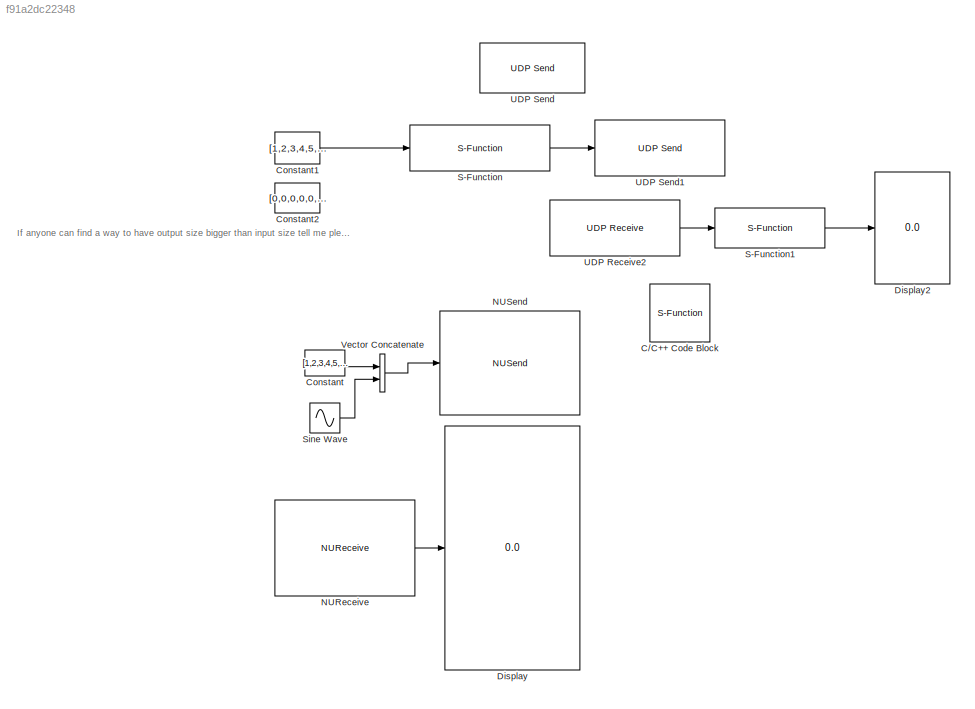
MODEL slx_f91a2dc22348
KIND model
CONFIG AbsTol = auto
CONFIG EnableMultiTasking = off
CONFIG FixedStep = auto
CONFIG MaxStep = auto
CONFIG MinStep = auto
CONFIG RelTol = 1e-3
CONFIG SampleTimeConstraint = Unconstrained
CONFIG Solver = VariableStepAuto
CONFIG SolverName = VariableStepAuto
CONFIG StartTime = 0.0
CONFIG StopTime = 10.0
BLOCK [S-Function] C//C++ Code Block
  Commented = on
  CopyFcn = set_param(gcbh,'LinkStatus','none')
  EnableBusSupport = off
  OpenFcn = sfunctionwizard(gcbh)
  Ports = [1, 1]
  SFcnIsStateOwnerBlock = off
  SFunctionDeploymentMode = off
BLOCK [Constant] Constant
  OutDataTypeStr = double
  SampleTime = 0.1
  Value = [1,2,3,4,5,6,7,8,9,10,11,12,13,14,15]
BLOCK [Constant] Constant1
  Commented = on
  OutDataTypeStr = double
  SampleTime = 0.1
  Value = [1,2,3,4,5,6,7,160,9,10,11,12,13,100004,15,1600000000]
BLOCK [Constant] Constant2
  Commented = on
  Value = [0,0,0,0,0,0,0,0,0,0,0,0,0,0,0,0,0,0,0,0,0,0,0,0,0,0,0,0,0,0,0,0,0,0,0,0,0,0,0,0,0,0,0,0,0,0,0,0,0,0,0,0,0,0,0,0,0,0,0,0,0,0,0,0,0,0,0,0,0,0,0,0,0,0,0,0,0,0,0,0,0,0,0,0,0,0,0,0,0,0,0,0,0,0,0,0,0,0,0,0,0,0,0,0,0,0,0,0,0,0,0,0,0,0,0,0,0,0,0,0,0,0,0,0,0,0,0,0,0,0,0,0,0,0,0,0,0,0,0,0,0,0,0,0,0,0,0,0,0,0,0,0,0,0,0,0,0,0,0,0,0,0,0,0,0,0,0,0,0,0,0,0,0,0,0,0,0,0,0,0,0,0,0,0,0,0,0,0,0,0,0,0,0,0,0,0,0,0,0,0...<+81ch>
BLOCK [Display] Display
  Decimation = 1
  Format = long_e
  Ports = [1]
BLOCK [Display] Display2
  Commented = on
  Decimation = 1
  Ports = [1]
BLOCK [Reference] NUReceive  REF=NUbotsUDP/NUReceive
  Ports = [0, 1]
  SourceBlock = NUbotsUDP/NUReceive
  SourceType = NUReceive
BLOCK [Reference] NUSend  REF=NUbotsUDP/NUSend
  Ports = [1]
  SourceBlock = NUbotsUDP/NUSend
  SourceType = NUSend
BLOCK [S-Function] S-Function
  Commented = on
  EnableBusSupport = off
  FunctionName = SfunProtobufEncode
  Ports = [1, 1]
  SFcnIsStateOwnerBlock = off
  SFunctionDeploymentMode = off
BLOCK [S-Function] S-Function1
  Commented = on
  EnableBusSupport = off
  FunctionName = SfunProtobufDecode
  Ports = [1, 1]
  SFcnIsStateOwnerBlock = off
  SFunctionDeploymentMode = off
BLOCK [Sin] Sine Wave
  Ports = [0, 1]
  SampleTime = 0.1
BLOCK [Reference] UDP Receive2  REF=instrumentlib/UDP Receive
  Commented = on
  Ports = [0, 1]
  SourceBlock = instrumentlib/UDP Receive
  SourceProductBaseCode = IC
  SourceProductName = Instrument Control Toolbox
  SourceType = UDP Receive
BLOCK [Reference] UDP Send  REF=dspnetwork/UDP Send
  Commented = on
  Ports = [1]
  SourceBlock = dspnetwork/UDP Send
  SourceProductBaseCode = SL
  SourceProductName = Simulink
  SourceType = UDP Send
BLOCK [Reference] UDP Send1  REF=instrumentlib/UDP Send
  Commented = on
  Ports = [1]
  SourceBlock = instrumentlib/UDP Send
  SourceProductBaseCode = IC
  SourceProductName = Instrument Control Toolbox
  SourceType = UDP Send
BLOCK [Concatenate] Vector Concatenate
  Ports = [2, 1]
ANNOTATION (root): If anyone can find a way to have output size bigger than input size tell me please
LINE Constant1:1 -> S-Function:1
LINE Constant:1 -> Vector Concatenate:1
LINE NUReceive:1 -> Display:1
LINE S-Function1:1 -> Display2:1
LINE S-Function:1 -> UDP Send1:1
LINE Sine Wave:1 -> Vector Concatenate:2
LINE UDP Receive2:1 -> S-Function1:1
LINE Vector Concatenate:1 -> NUSend:1
